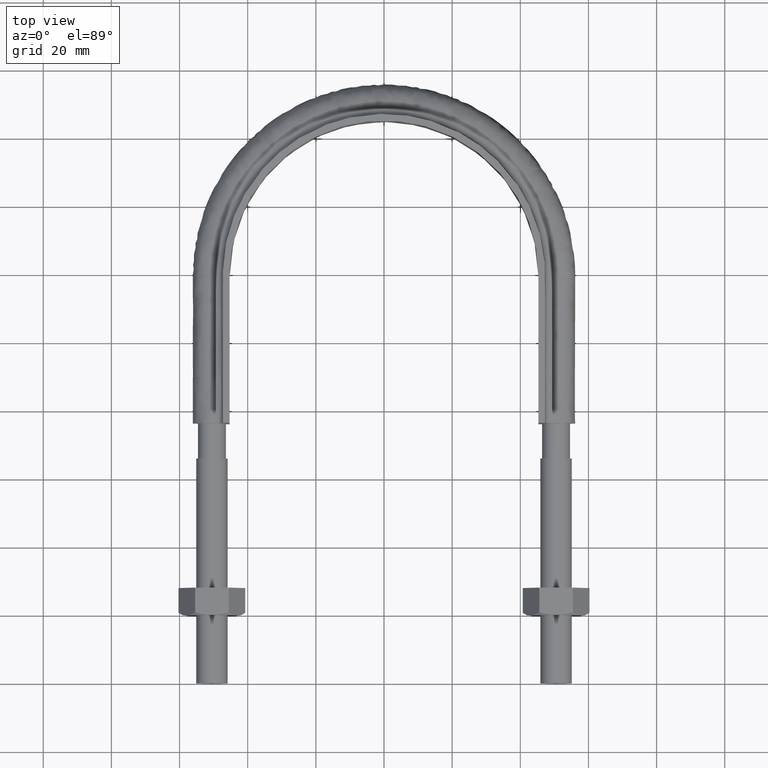
[diagram: clean part render]
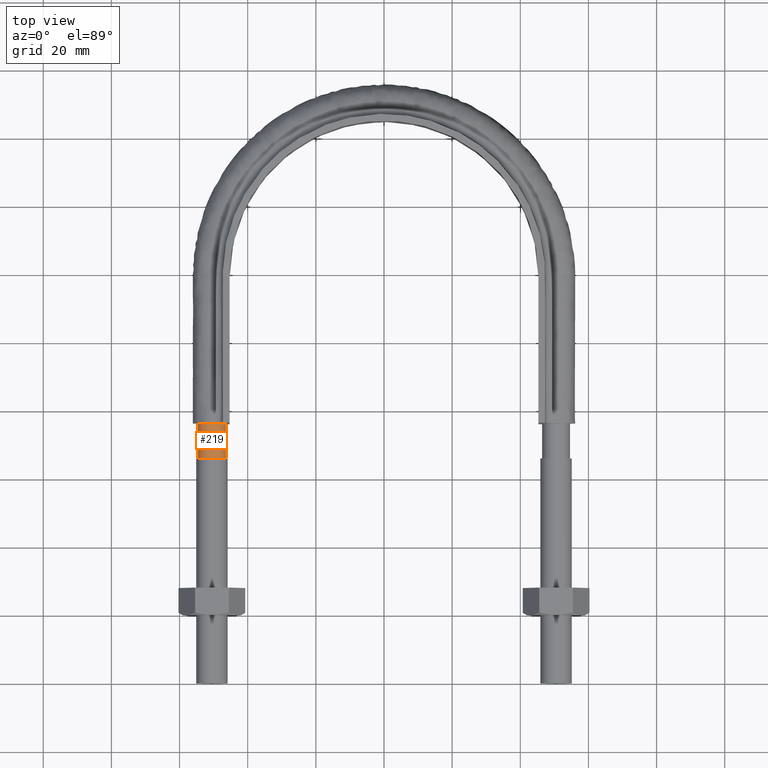
[diagram: same view with one face highlighted and labeled with its STEP entity id]
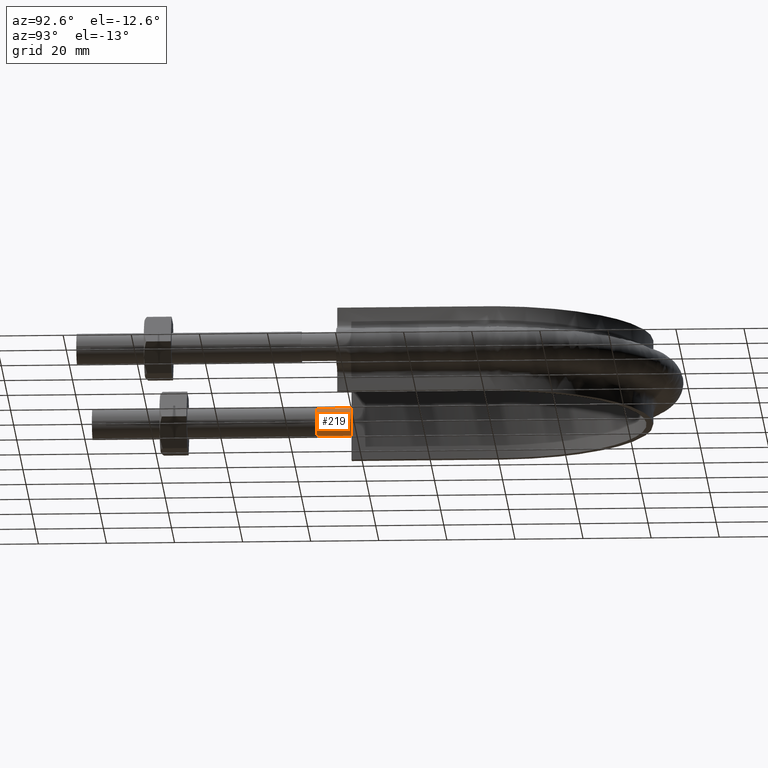
[diagram: same view with one face highlighted and labeled with its STEP entity id]
A machine part, top view. The second image highlights one B-rep face of the part: STEP entity #219.
A second angle (auxiliary view) of the same face is appended — the face is thin or edge-on in the first view.
In plain terms, the highlighted cylindrical surface (bore or boss wall) has radius 4.1 mm, axis along (-0, -1, -0).
Its self-contained STEP definition (entity closure, byte-faithful):
#219 = ADVANCED_FACE( '', ( #296, #297 ), #298, .T. );
#296 = FACE_OUTER_BOUND( '', #468, .T. );
#297 = FACE_OUTER_BOUND( '', #469, .T. );
#298 = CYLINDRICAL_SURFACE( '', #470, 4.10000000000000 );
#468 = EDGE_LOOP( '', ( #1454 ) );
#469 = EDGE_LOOP( '', ( #1455, #1456, #1457, #1458, #1459, #1460, #1461 ) );
#470 = AXIS2_PLACEMENT_3D( '', #1462, #1463, #1464 );
#1454 = ORIENTED_EDGE( '', *, *, #1991, .T. );
#1455 = ORIENTED_EDGE( '', *, *, #1992, .T. );
#1456 = ORIENTED_EDGE( '', *, *, #1993, .T. );
#1457 = ORIENTED_EDGE( '', *, *, #1994, .T. );
#1458 = ORIENTED_EDGE( '', *, *, #1995, .T. );
#1459 = ORIENTED_EDGE( '', *, *, #1996, .T. );
#1460 = ORIENTED_EDGE( '', *, *, #1997, .T. );
#1461 = ORIENTED_EDGE( '', *, *, #1998, .T. );
#1462 = CARTESIAN_POINT( '', ( -50.5000000000000, 76.3000000000000, 2.33899813580074E-015 ) );
#1463 = DIRECTION( '', ( -2.44921270764475E-016, -1.00000000000000, -6.12303176911189E-017 ) );
#1464 = DIRECTION( '', ( 1.00000000000000, -2.44921270764475E-016, -7.49830360911069E-033 ) );
#1991 = EDGE_CURVE( '', #2143, #2143, #2144, .T. );
#1992 = EDGE_CURVE( '', #2145, #2146, #2147, .T. );
#1993 = EDGE_CURVE( '', #2146, #2148, #2149, .T. );
#1994 = EDGE_CURVE( '', #2148, #2150, #2151, .T. );
#1995 = EDGE_CURVE( '', #2150, #2152, #2153, .T. );
#1996 = EDGE_CURVE( '', #2152, #2154, #2155, .T. );
#1997 = EDGE_CURVE( '', #2154, #2156, #2157, .T. );
#1998 = EDGE_CURVE( '', #2156, #2145, #2158, .T. );
#2143 = VERTEX_POINT( '', #2393 );
#2144 = CIRCLE( '', #2394, 4.10000000000000 );
#2145 = VERTEX_POINT( '', #2395 );
#2146 = VERTEX_POINT( '', #2396 );
#2147 = CIRCLE( '', #2397, 4.10000000000000 );
#2148 = VERTEX_POINT( '', #2398 );
#2149 = CIRCLE( '', #2399, 4.10000000000000 );
#2150 = VERTEX_POINT( '', #2400 );
#2151 = CIRCLE( '', #2401, 4.10000000000000 );
#2152 = VERTEX_POINT( '', #2402 );
#2153 = CIRCLE( '', #2403, 4.10000000000000 );
#2154 = VERTEX_POINT( '', #2404 );
#2155 = CIRCLE( '', #2405, 4.10000000000000 );
#2156 = VERTEX_POINT( '', #2406 );
#2157 = CIRCLE( '', #2407, 4.10000000000000 );
#2158 = CIRCLE( '', #2408, 4.10000000000000 );
#2393 = CARTESIAN_POINT( '', ( -46.4000000000000, 66.0000000000000, 1.70832586358222E-015 ) );
#2394 = AXIS2_PLACEMENT_3D( '', #3053, #3054, #3055 );
#2395 = CARTESIAN_POINT( '', ( -46.4000000000000, 76.3000000000000, 5.26579952126469E-014 ) );
#2396 = CARTESIAN_POINT( '', ( -47.9436918123994, 76.3000000000000, 3.20550907813503 ) );
#2397 = AXIS2_PLACEMENT_3D( '', #3056, #3057, #3058 );
#2398 = CARTESIAN_POINT( '', ( -51.4123358292446, 76.3000000000000, 3.99720443994006 ) );
#2399 = AXIS2_PLACEMENT_3D( '', #3059, #3060, #3061 );
#2400 = CARTESIAN_POINT( '', ( -54.1939723584001, 76.3000000000000, 1.77892333038152 ) );
#2401 = AXIS2_PLACEMENT_3D( '', #3062, #3063, #3064 );
#2402 = CARTESIAN_POINT( '', ( -54.1939723583999, 76.3000000000000, -1.77892333038199 ) );
#2403 = AXIS2_PLACEMENT_3D( '', #3065, #3066, #3067 );
#2404 = CARTESIAN_POINT( '', ( -51.4123358292208, 76.3000000000000, -3.99720443994549 ) );
#2405 = AXIS2_PLACEMENT_3D( '', #3068, #3069, #3070 );
#2406 = CARTESIAN_POINT( '', ( -47.9436918123793, 76.3000000000000, -3.20550907811901 ) );
#2407 = AXIS2_PLACEMENT_3D( '', #3071, #3072, #3073 );
#2408 = AXIS2_PLACEMENT_3D( '', #3074, #3075, #3076 );
#3053 = CARTESIAN_POINT( '', ( -50.5000000000000, 66.0000000000000, 1.70832586358222E-015 ) );
#3054 = DIRECTION( '', ( 2.44921270764475E-016, 1.00000000000000, 6.12303176911189E-017 ) );
#3055 = DIRECTION( '', ( 1.00000000000000, -2.44921270764475E-016, 0.000000000000000 ) );
#3056 = CARTESIAN_POINT( '', ( -50.5000000000000, 76.3000000000000, 2.33899813580074E-015 ) );
#3057 = DIRECTION( '', ( -2.44921270764475E-016, -1.00000000000000, -6.12303176911189E-017 ) );
#3058 = DIRECTION( '', ( 1.00000000000000, -2.44921270764475E-016, -1.04341724267742E-032 ) );
#3059 = CARTESIAN_POINT( '', ( -50.5000000000000, 76.3000000000000, 2.33899813580074E-015 ) );
#3060 = DIRECTION( '', ( -2.44921270764475E-016, -1.00000000000000, -6.12303176911189E-017 ) );
#3061 = DIRECTION( '', ( 1.00000000000000, -2.44921270764475E-016, -1.04341724267742E-032 ) );
#3062 = CARTESIAN_POINT( '', ( -50.5000000000000, 76.3000000000000, 2.33899813580074E-015 ) );
#3063 = DIRECTION( '', ( -2.44921270764475E-016, -1.00000000000000, -6.12303176911189E-017 ) );
#3064 = DIRECTION( '', ( 1.00000000000000, -2.44921270764475E-016, -1.04341724267742E-032 ) );
#3065 = CARTESIAN_POINT( '', ( -50.5000000000000, 76.3000000000000, 2.33899813580074E-015 ) );
#3066 = DIRECTION( '', ( -2.44921270764475E-016, -1.00000000000000, -6.12303176911189E-017 ) );
#3067 = DIRECTION( '', ( 1.00000000000000, -2.44921270764475E-016, -1.04341724267742E-032 ) );
#3068 = CARTESIAN_POINT( '', ( -50.5000000000000, 76.3000000000000, 2.33899813580074E-015 ) );
#3069 = DIRECTION( '', ( -2.44921270764475E-016, -1.00000000000000, -6.12303176911189E-017 ) );
#3070 = DIRECTION( '', ( 1.00000000000000, -2.44921270764475E-016, -1.04341724267742E-032 ) );
#3071 = CARTESIAN_POINT( '', ( -50.5000000000000, 76.3000000000000, 2.33899813580074E-015 ) );
#3072 = DIRECTION( '', ( -2.44921270764475E-016, -1.00000000000000, -6.12303176911189E-017 ) );
#3073 = DIRECTION( '', ( 1.00000000000000, -2.44921270764475E-016, -1.04341724267742E-032 ) );
#3074 = CARTESIAN_POINT( '', ( -50.5000000000000, 76.3000000000000, 2.33899813580074E-015 ) );
#3075 = DIRECTION( '', ( -2.44921270764475E-016, -1.00000000000000, -6.12303176911189E-017 ) );
#3076 = DIRECTION( '', ( 1.00000000000000, -2.44921270764475E-016, -1.04341724267742E-032 ) );